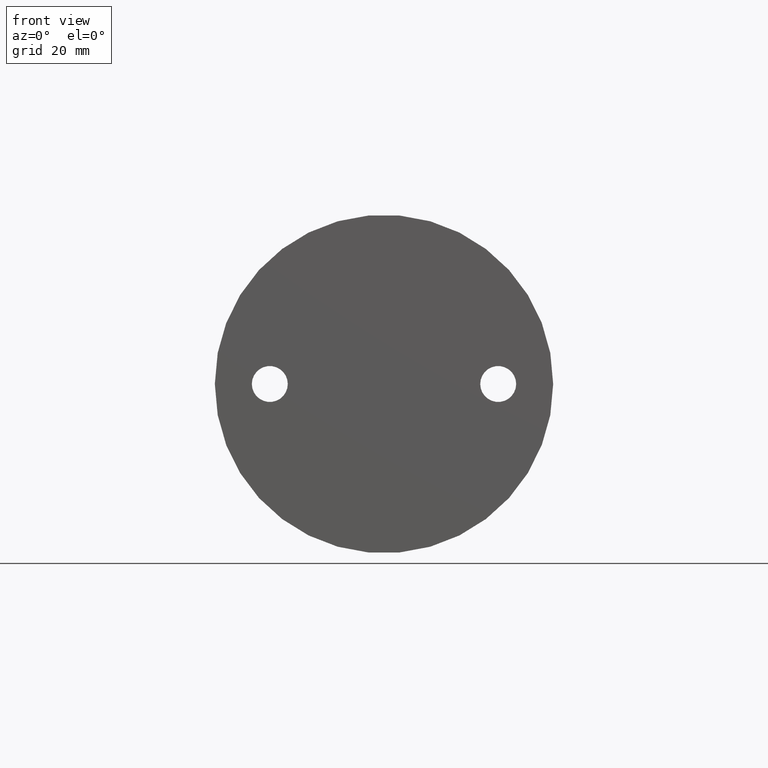
[diagram: clean part render]
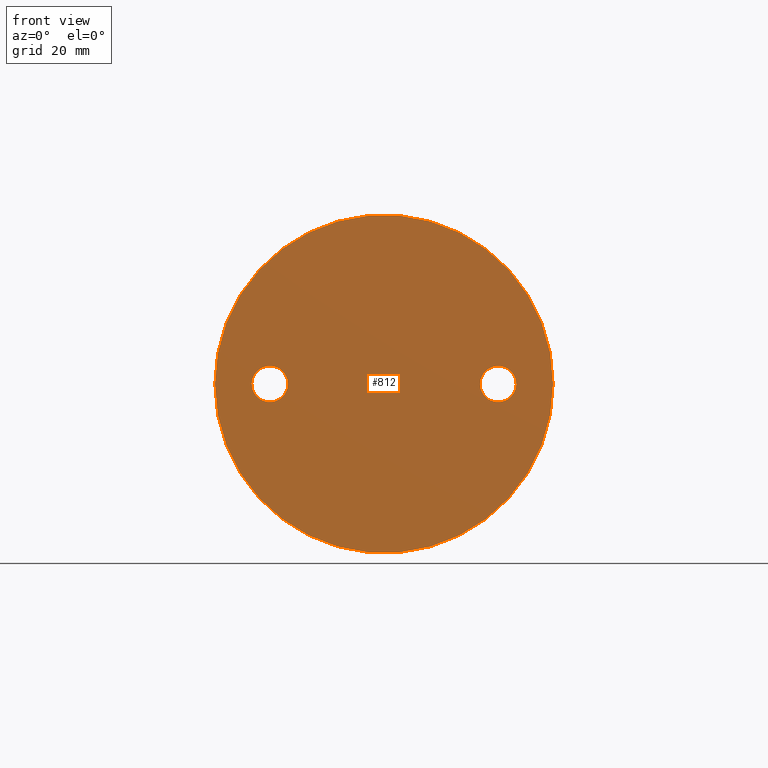
[diagram: same view with one face highlighted and labeled with its STEP entity id]
A machine part, front view. The second image highlights one B-rep face of the part: STEP entity #812.
In plain terms, the highlighted planar face has unit normal (0, -1, 0).
Its self-contained STEP definition (entity closure, byte-faithful):
#35=FACE_BOUND('',#201,.T.);
#36=FACE_BOUND('',#202,.T.);
#46=PLANE('',#941);
#151=FACE_OUTER_BOUND('',#200,.T.);
#200=EDGE_LOOP('',(#695));
#201=EDGE_LOOP('',(#696));
#202=EDGE_LOOP('',(#697));
#274=CIRCLE('',#874,40.);
#303=CIRCLE('',#916,4.25);
#305=CIRCLE('',#919,4.25);
#321=VERTEX_POINT('',#1198);
#364=VERTEX_POINT('',#1468);
#366=VERTEX_POINT('',#1474);
#404=EDGE_CURVE('',#321,#321,#274,.T.);
#459=EDGE_CURVE('',#364,#364,#303,.T.);
#462=EDGE_CURVE('',#366,#366,#305,.T.);
#695=ORIENTED_EDGE('',*,*,#404,.T.);
#696=ORIENTED_EDGE('',*,*,#459,.T.);
#697=ORIENTED_EDGE('',*,*,#462,.T.);
#812=ADVANCED_FACE('',(#151,#35,#36),#46,.T.);
#874=AXIS2_PLACEMENT_3D('',#1199,#976,#977);
#916=AXIS2_PLACEMENT_3D('',#1470,#1066,#1067);
#919=AXIS2_PLACEMENT_3D('',#1476,#1073,#1074);
#941=AXIS2_PLACEMENT_3D('',#1567,#1126,#1127);
#976=DIRECTION('center_axis',(0.,-1.,0.));
#977=DIRECTION('ref_axis',(-1.,0.,0.));
#1066=DIRECTION('center_axis',(0.,1.,0.));
#1067=DIRECTION('ref_axis',(1.,0.,0.));
#1073=DIRECTION('center_axis',(0.,1.,0.));
#1074=DIRECTION('ref_axis',(1.,0.,0.));
#1126=DIRECTION('center_axis',(0.,-1.,0.));
#1127=DIRECTION('ref_axis',(0.,0.,-1.));
#1198=CARTESIAN_POINT('',(40.,0.,4.89842541528951E-15));
#1199=CARTESIAN_POINT('Origin',(0.,0.,0.));
#1468=CARTESIAN_POINT('',(-31.25,0.,5.20457700374478E-16));
#1470=CARTESIAN_POINT('Origin',(-27.,0.,0.));
#1474=CARTESIAN_POINT('',(22.75,0.,5.20457700374478E-16));
#1476=CARTESIAN_POINT('Origin',(27.,0.,0.));
#1567=CARTESIAN_POINT('Origin',(-20.,0.,-4.89842541528951E-15));